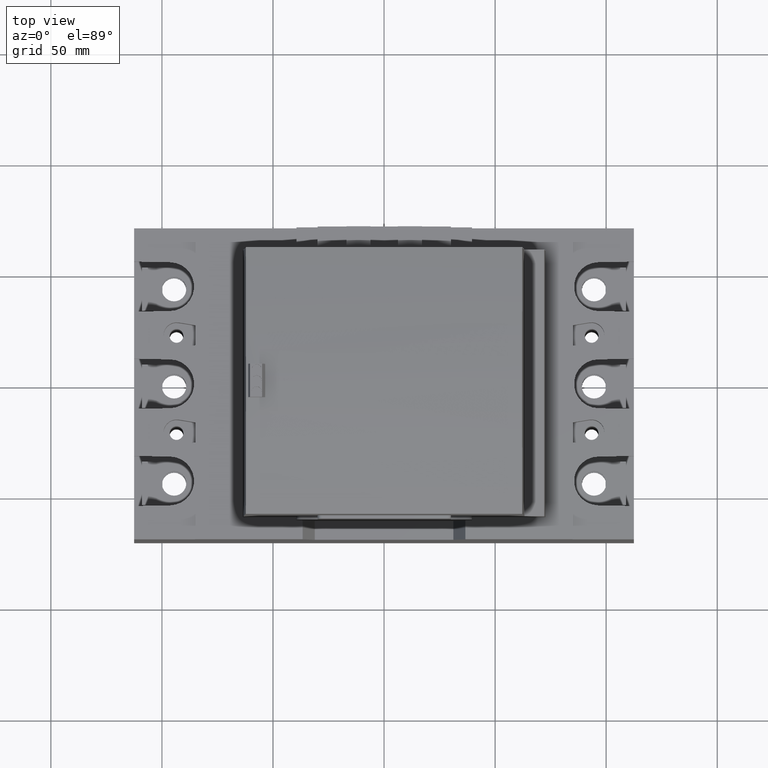
[diagram: clean part render]
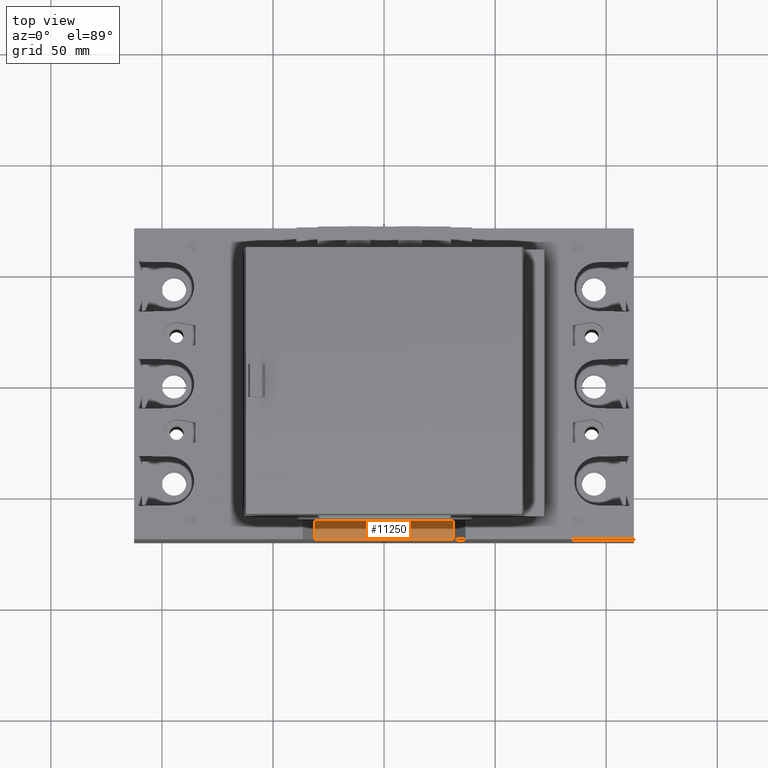
[diagram: same view with one face highlighted and labeled with its STEP entity id]
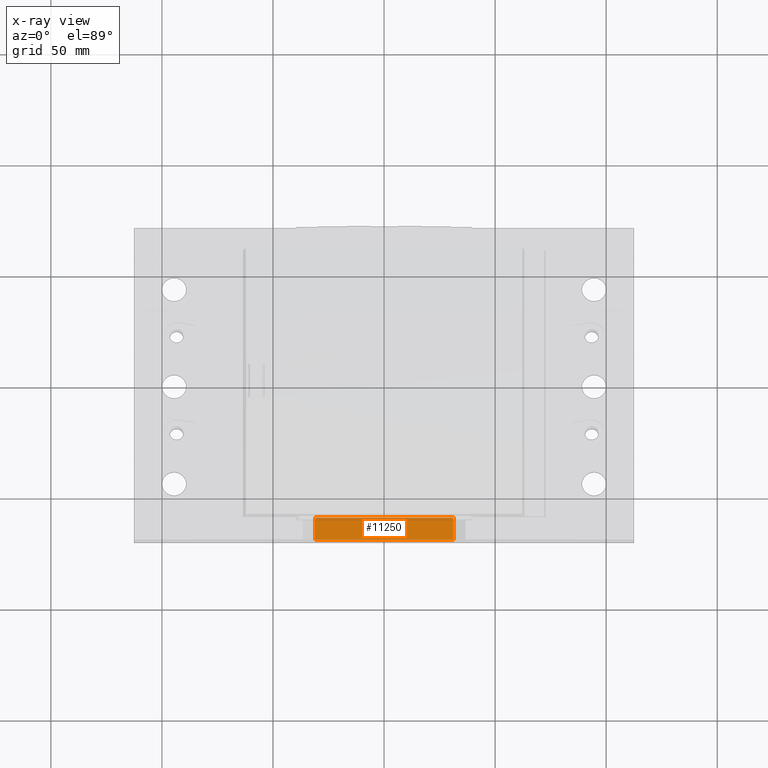
[diagram: x-ray of the same camera — body ghosted, the highlighted face saturated]
A machine part, top view. The second image highlights one B-rep face of the part: STEP entity #11250.
The next image is the same camera in x-ray: the body ghosted, the highlighted face saturated — about 9% of this face is hidden behind the body in this view.
In plain terms, the highlighted planar face has unit normal (0, 0, -1).
Its self-contained STEP definition (entity closure, byte-faithful):
#268=DIRECTION('',(1.E0,0.E0,0.E0));
#269=VECTOR('',#268,6.244639530843E1);
#270=CARTESIAN_POINT('',(-3.122319765421E1,-6.E1,8.931490747116E1));
#271=LINE('',#270,#269);
#1186=DIRECTION('',(1.E0,0.E0,0.E0));
#1187=VECTOR('',#1186,6.244639530843E1);
#1188=CARTESIAN_POINT('',(-3.122319765421E1,-7.E1,8.931490747116E1));
#1189=LINE('',#1188,#1187);
#1361=DIRECTION('',(0.E0,1.E0,0.E0));
#1362=VECTOR('',#1361,1.E1);
#1363=CARTESIAN_POINT('',(-3.122319765421E1,-7.E1,8.931490747116E1));
#1364=LINE('',#1363,#1362);
#1368=DIRECTION('',(0.E0,1.E0,0.E0));
#1369=VECTOR('',#1368,1.E1);
#1370=CARTESIAN_POINT('',(3.122319765421E1,-7.E1,8.931490747116E1));
#1371=LINE('',#1370,#1369);
#8931=CARTESIAN_POINT('',(-3.122319765421E1,-6.E1,8.931490747116E1));
#8933=VERTEX_POINT('',#8931);
#8934=CARTESIAN_POINT('',(3.122319765421E1,-6.E1,8.931490747116E1));
#8935=VERTEX_POINT('',#8934);
#8939=CARTESIAN_POINT('',(-3.122319765421E1,-7.E1,8.931490747116E1));
#8941=VERTEX_POINT('',#8939);
#8942=CARTESIAN_POINT('',(3.122319765421E1,-7.E1,8.931490747116E1));
#8943=VERTEX_POINT('',#8942);
#11238=CARTESIAN_POINT('',(-3.122319765421E1,-7.E1,8.931490747116E1));
#11239=DIRECTION('',(0.E0,0.E0,-1.E0));
#11240=DIRECTION('',(1.E0,0.E0,0.E0));
#11241=AXIS2_PLACEMENT_3D('',#11238,#11239,#11240);
#11242=PLANE('',#11241);
#11243=ORIENTED_EDGE('',*,*,#11184,.F.);
#11244=ORIENTED_EDGE('',*,*,#11172,.T.);
#11245=ORIENTED_EDGE('',*,*,#10422,.T.);
#11247=ORIENTED_EDGE('',*,*,#11246,.F.);
#11248=EDGE_LOOP('',(#11243,#11244,#11245,#11247));
#11249=FACE_OUTER_BOUND('',#11248,.F.);
#10422=EDGE_CURVE('',#8933,#8935,#271,.T.);
#11172=EDGE_CURVE('',#8941,#8933,#1364,.T.);
#11184=EDGE_CURVE('',#8941,#8943,#1189,.T.);
#11246=EDGE_CURVE('',#8943,#8935,#1371,.T.);
#11250=ADVANCED_FACE('',(#11249),#11242,.F.);